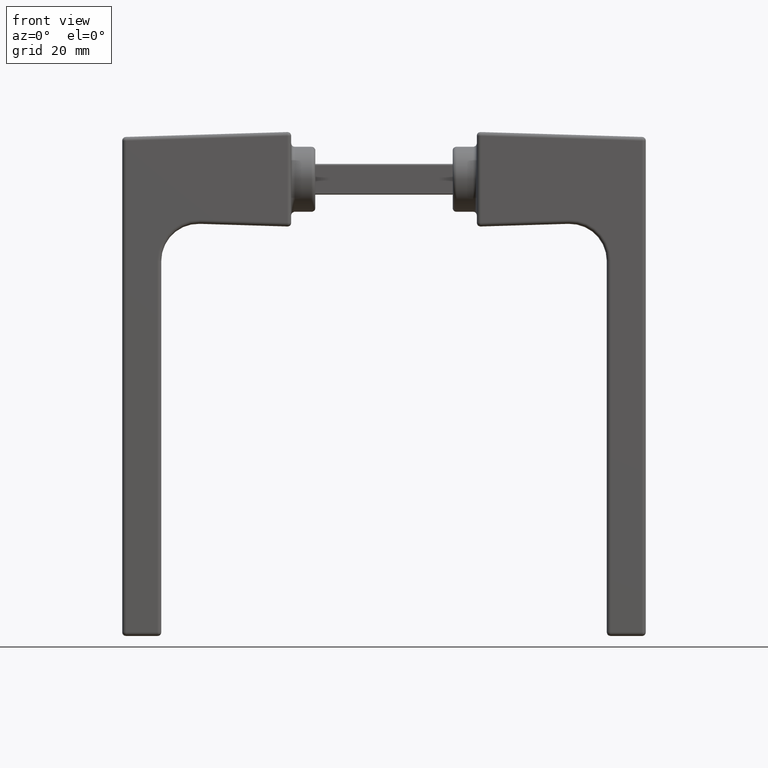
[diagram: clean part render]
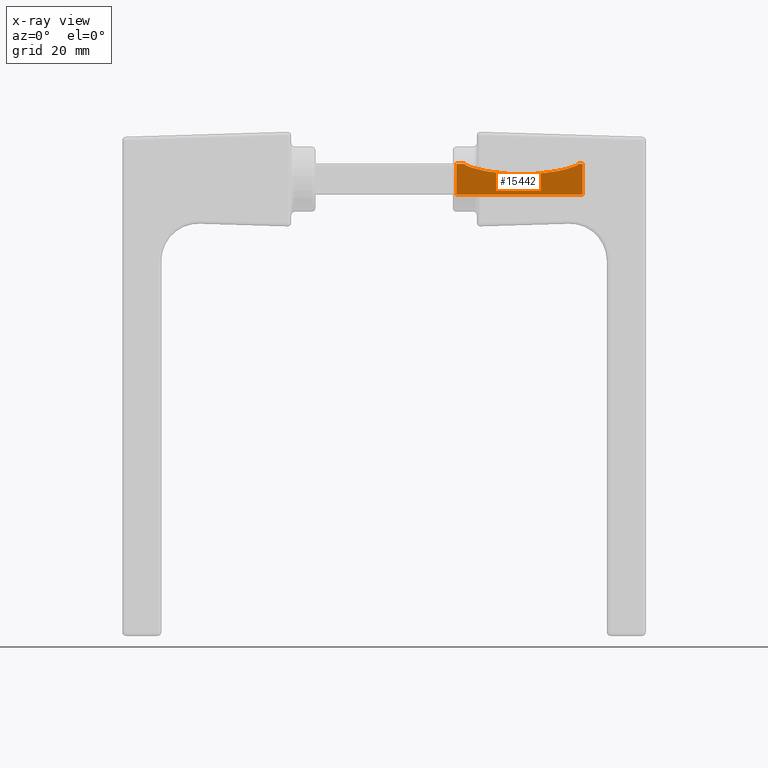
[diagram: x-ray — body ghosted, one internal face saturated and labeled with its STEP entity id]
A machine part, front view, then the same camera in x-ray: the body is ghosted and one INTERNAL B-rep face — a face not visible from any outside direction — is saturated and labeled: STEP entity #15442.
In plain terms, the highlighted planar face has unit normal (0, -1, 0).
Its self-contained STEP definition (entity closure, byte-faithful):
#10 = CARTESIAN_POINT ( 'NONE',  ( 44.50000000000000000, -0.6999999999999998446, 4.150000000000000355 ) ) ;
#33 = EDGE_CURVE ( 'NONE', #2819, #4692, #7102, .T. ) ;
#143 = CARTESIAN_POINT ( 'NONE',  ( 78.49290500879376964, -0.6999999999999998446, -4.150000000000001243 ) ) ;
#316 = CARTESIAN_POINT ( 'NONE',  ( 77.14384119967137110, -0.6999999999999999556, 3.821007525441935115 ) ) ;
#437 = CARTESIAN_POINT ( 'NONE',  ( 46.88426378734806121, -0.6999999999999998446, 3.873003874506072641 ) ) ;
#488 = B_SPLINE_CURVE_WITH_KNOTS ( 'NONE', 3,
 ( #8281, #6019, #9498, #10879 ),
 .UNSPECIFIED., .F., .F.,
 ( 4, 4 ),
 ( 0.008503523017541366608, 0.008512437111472700296 ),
 .UNSPECIFIED. ) ;
#518 = CARTESIAN_POINT ( 'NONE',  ( 44.50000000000000000, -0.6999999999999998446, 4.150000000000000355 ) ) ;
#524 = CARTESIAN_POINT ( 'NONE',  ( 52.83421173487058553, -0.6999999999999998446, 2.066007962702774314 ) ) ;
#702 = VERTEX_POINT ( 'NONE', #14068 ) ;
#825 = DIRECTION ( 'NONE',  ( 1.000000000000000000, -0.000000000000000000, -0.000000000000000000 ) ) ;
#986 = CARTESIAN_POINT ( 'NONE',  ( 44.50000000000000000, -0.6999999999999998446, -4.150000000000001243 ) ) ;
#1023 = DIRECTION ( 'NONE',  ( 1.000000000000000000, -0.000000000000000000, -0.000000000000000000 ) ) ;
#1433 = PLANE ( 'NONE',  #15336 ) ;
#1450 = ORIENTED_EDGE ( 'NONE', *, *, #33, .T. ) ;
#1502 = EDGE_CURVE ( 'NONE', #8235, #12652, #5244, .T. ) ;
#1549 = CARTESIAN_POINT ( 'NONE',  ( 76.78237184980623908, -0.6999999999999999556, 3.613768811947208892 ) ) ;
#1719 = EDGE_CURVE ( 'NONE', #7576, #2819, #6000, .T. ) ;
#1754 = CARTESIAN_POINT ( 'NONE',  ( 49.63614313809784306, -0.6999999999999999556, 2.812399021145189693 ) ) ;
#1774 = ORIENTED_EDGE ( 'NONE', *, *, #9441, .F. ) ;
#1809 = CARTESIAN_POINT ( 'NONE',  ( 78.49527002143935306, -0.6999999999999998446, -4.148201184730281099 ) ) ;
#1956 = CARTESIAN_POINT ( 'NONE',  ( 46.71827091725572245, -0.6999999999999998446, 4.150000000000162004 ) ) ;
#2430 = EDGE_CURVE ( 'NONE', #8235, #702, #8068, .T. ) ;
#2819 = VERTEX_POINT ( 'NONE', #8231 ) ;
#2921 = CARTESIAN_POINT ( 'NONE',  ( 56.73440902007840236, -0.6999999999999997335, 1.495137214044553131 ) ) ;
#2937 = CARTESIAN_POINT ( 'NONE',  ( 46.73114881461278713, -0.6999999999999999556, 4.067301068626258953 ) ) ;
#2970 = CARTESIAN_POINT ( 'NONE',  ( 75.07046603404047858, -0.6999999999999999556, 2.982119115154530320 ) ) ;
#3036 = CARTESIAN_POINT ( 'NONE',  ( 46.77099276059751531, -0.6999999999999997335, 3.994545985126529253 ) ) ;
#3500 = EDGE_CURVE ( 'NONE', #702, #7576, #488, .T. ) ;
#4014 = CARTESIAN_POINT ( 'NONE',  ( 78.49290500879376964, -0.6999999999999998446, -4.150000000000001243 ) ) ;
#4122 = CARTESIAN_POINT ( 'NONE',  ( 49.00310410953562013, -0.6999999999999997335, 2.990169413700241474 ) ) ;
#4180 = CARTESIAN_POINT ( 'NONE',  ( 72.50114326983955948, -0.7000000000000002887, 2.312943975713599887 ) ) ;
#4252 = CARTESIAN_POINT ( 'NONE',  ( 46.71827091725572245, -0.6999999999999998446, 4.150000000000162004 ) ) ;
#4692 = VERTEX_POINT ( 'NONE', #143 ) ;
#4867 = VECTOR ( 'NONE', #8293, 1000.000000000000000 ) ;
#4896 = EDGE_CURVE ( 'NONE', #9877, #12652, #10914, .T. ) ;
#4902 = CARTESIAN_POINT ( 'NONE',  ( 77.38172908274427186, -0.6999999999999998446, 4.150000000000000355 ) ) ;
#4953 = DIRECTION ( 'NONE',  ( 0.000000000000000000, -1.000000000000000000, -0.000000000000000000 ) ) ;
#5164 = VECTOR ( 'NONE', #11456, 1000.000000000000000 ) ;
#5176 = CARTESIAN_POINT ( 'NONE',  ( 76.01408711863331291, -0.6999999999999999556, 3.298522237191925832 ) ) ;
#5225 = CARTESIAN_POINT ( 'NONE',  ( 77.30077557932267496, -0.6999999999999999556, 3.959921606898943569 ) ) ;
#5242 = CARTESIAN_POINT ( 'NONE',  ( 46.95213895812164395, -0.6999999999999998446, 3.823877750149885735 ) ) ;
#5244 = B_SPLINE_CURVE_WITH_KNOTS ( 'NONE', 3,
 ( #10027, #7511, #14893, #12363, #5225, #7567, #316, #8759, #1549, #9976, #5176, #2970, #12614, #4180, #5391, #13828, #13771, #7759, #15000, #10126, #5333, #6547, #10183, #2921, #11346, #524, #8956, #1754, #4122, #12562, #11461, #5459, #6562, #5242, #437, #13901, #3036, #2937, #5354, #4252 ),
 .UNSPECIFIED., .F., .F.,
 ( 4, 2, 2, 2, 2, 2, 2, 2, 2, 2, 2, 2, 2, 2, 2, 2, 2, 2, 2, 4 ),
 ( 0.04715113346018982160, 0.04727418907977579132, 0.04739724469936176104, 0.04764335593853369355, 0.04813557841687756550, 0.04912002337356530940, 0.05108891328694079720, 0.05502669311369177974, 0.05896447294044275533, 0.06290225276719373093, 0.06487114268056921873, 0.06684003259394470653, 0.07077781242069570988, 0.07471559224744669936, 0.07668448216082218716, 0.07766892711750993106, 0.07816114959585379607, 0.07840726083502572163, 0.07853031645461168442, 0.07865337207419764720 ),
 .UNSPECIFIED. ) ;
#5333 = CARTESIAN_POINT ( 'NONE',  ( 60.66446390151436674, -0.6999999999999997335, 1.247456758493457718 ) ) ;
#5354 = CARTESIAN_POINT ( 'NONE',  ( 46.71827091725568692, -0.6999999999999998446, 4.108378035317773680 ) ) ;
#5391 = CARTESIAN_POINT ( 'NONE',  ( 71.20472326780233630, -0.6999999999999998446, 2.054311984619509701 ) ) ;
#5459 = CARTESIAN_POINT ( 'NONE',  ( 47.30909652781466690, -0.6999999999999997335, 3.617910183207506680 ) ) ;
#5571 = ORIENTED_EDGE ( 'NONE', *, *, #1719, .T. ) ;
#6000 = LINE ( 'NONE', #7451, #13178 ) ;
#6019 = CARTESIAN_POINT ( 'NONE',  ( 78.49527002144709797, -0.6999999999999998446, 4.148201184724392476 ) ) ;
#6124 = VERTEX_POINT ( 'NONE', #986 ) ;
#6326 = EDGE_CURVE ( 'NONE', #6124, #4692, #11266, .T. ) ;
#6480 = ORIENTED_EDGE ( 'NONE', *, *, #2430, .T. ) ;
#6542 = CARTESIAN_POINT ( 'NONE',  ( 78.50000000000000000, -0.6999999999999998446, -4.144603492545714474 ) ) ;
#6547 = CARTESIAN_POINT ( 'NONE',  ( 59.35238954537208400, -0.6999999999999996225, 1.300260113010345497 ) ) ;
#6562 = CARTESIAN_POINT ( 'NONE',  ( 47.16028380320199886, -0.6999999999999997335, 3.690296861220797808 ) ) ;
#7102 = B_SPLINE_CURVE_WITH_KNOTS ( 'NONE', 3,
 ( #6542, #14997, #1809, #4014 ),
 .UNSPECIFIED., .F., .F.,
 ( 4, 4 ),
 ( 0.02109387637583304276, 0.02110272353503789278 ),
 .UNSPECIFIED. ) ;
#7258 = LINE ( 'NONE', #11357, #5164 ) ;
#7402 = DIRECTION ( 'NONE',  ( 0.000000000000000000, 0.000000000000000000, -1.000000000000000000 ) ) ;
#7451 = CARTESIAN_POINT ( 'NONE',  ( 78.50000000000000000, -0.6999999999999998446, 4.150000000000000355 ) ) ;
#7511 = CARTESIAN_POINT ( 'NONE',  ( 77.38172908274457029, -0.6999999999999997335, 4.108069449181103394 ) ) ;
#7567 = CARTESIAN_POINT ( 'NONE',  ( 77.21233956489267314, -0.6999999999999999556, 3.870106758486608012 ) ) ;
#7576 = VERTEX_POINT ( 'NONE', #15328 ) ;
#7759 = CARTESIAN_POINT ( 'NONE',  ( 64.63807449567433139, -0.6999999999999997335, 1.281369017957546097 ) ) ;
#8068 = LINE ( 'NONE', #10, #4867 ) ;
#8231 = CARTESIAN_POINT ( 'NONE',  ( 78.50000000000000000, -0.6999999999999998446, -4.144603492545714474 ) ) ;
#8235 = VERTEX_POINT ( 'NONE', #4902 ) ;
#8281 = CARTESIAN_POINT ( 'NONE',  ( 78.49290500879375543, -0.6999999999999998446, 4.150000000000003020 ) ) ;
#8293 = DIRECTION ( 'NONE',  ( 1.000000000000000000, -0.000000000000000000, -0.000000000000000000 ) ) ;
#8759 = CARTESIAN_POINT ( 'NONE',  ( 76.93351641135454599, -0.6999999999999998446, 3.686929515114801159 ) ) ;
#8956 = CARTESIAN_POINT ( 'NONE',  ( 51.54733192493425520, -0.6999999999999998446, 2.324495264319454524 ) ) ;
#9441 = EDGE_CURVE ( 'NONE', #9877, #6124, #7258, .T. ) ;
#9498 = CARTESIAN_POINT ( 'NONE',  ( 78.49763501853593084, -0.6999999999999998446, 4.146402348932765491 ) ) ;
#9584 = VECTOR ( 'NONE', #825, 1000.000000000000000 ) ;
#9601 = CARTESIAN_POINT ( 'NONE',  ( 44.50000000000000000, -0.6999999999999998446, -4.150000000000001243 ) ) ;
#9856 = DIRECTION ( 'NONE',  ( 0.000000000000000000, 0.000000000000000000, -1.000000000000000000 ) ) ;
#9877 = VERTEX_POINT ( 'NONE', #518 ) ;
#9976 = CARTESIAN_POINT ( 'NONE',  ( 76.32622674179886246, -0.7000000000000000666, 3.410843837755937358 ) ) ;
#10027 = CARTESIAN_POINT ( 'NONE',  ( 77.38172908274427186, -0.6999999999999998446, 4.150000000000000355 ) ) ;
#10126 = CARTESIAN_POINT ( 'NONE',  ( 61.31969354077669010, -0.6999999999999997335, 1.233724940607935583 ) ) ;
#10183 = CARTESIAN_POINT ( 'NONE',  ( 58.69723120532518124, -0.6999999999999997335, 1.339380959620331213 ) ) ;
#10198 = ORIENTED_EDGE ( 'NONE', *, *, #6326, .F. ) ;
#10547 = ORIENTED_EDGE ( 'NONE', *, *, #1502, .F. ) ;
#10879 = CARTESIAN_POINT ( 'NONE',  ( 78.50000000000000000, -0.6999999999999998446, 4.144603492545700263 ) ) ;
#10914 = LINE ( 'NONE', #13965, #9584 ) ;
#11266 = LINE ( 'NONE', #9601, #13535 ) ;
#11346 = CARTESIAN_POINT ( 'NONE',  ( 55.42730443762795289, -0.6999999999999998446, 1.650264680991557320 ) ) ;
#11357 = CARTESIAN_POINT ( 'NONE',  ( 44.50000000000000000, -0.6999999999999998446, 4.150000000000000355 ) ) ;
#11456 = DIRECTION ( 'NONE',  ( 0.000000000000000000, 0.000000000000000000, -1.000000000000000000 ) ) ;
#11461 = CARTESIAN_POINT ( 'NONE',  ( 47.76096532647916604, -0.6999999999999997335, 3.415882957583341817 ) ) ;
#12363 = CARTESIAN_POINT ( 'NONE',  ( 77.32766376627832017, -0.6999999999999999556, 3.992524518431332492 ) ) ;
#12562 = CARTESIAN_POINT ( 'NONE',  ( 48.06981988422457874, -0.6999999999999998446, 3.304343626074100371 ) ) ;
#12614 = CARTESIAN_POINT ( 'NONE',  ( 74.42921210639759977, -0.6999999999999997335, 2.802790558723280423 ) ) ;
#12652 = VERTEX_POINT ( 'NONE', #1956 ) ;
#13178 = VECTOR ( 'NONE', #7402, 1000.000000000000000 ) ;
#13479 = ORIENTED_EDGE ( 'NONE', *, *, #3500, .T. ) ;
#13535 = VECTOR ( 'NONE', #1023, 1000.000000000000000 ) ;
#13771 = CARTESIAN_POINT ( 'NONE',  ( 67.28172508569264210, -0.6999999999999998446, 1.486002401989054089 ) ) ;
#13828 = CARTESIAN_POINT ( 'NONE',  ( 68.59517595671084678, -0.6999999999999999556, 1.639845781463355134 ) ) ;
#13901 = CARTESIAN_POINT ( 'NONE',  ( 46.79760446189103362, -0.6999999999999999556, 3.961859159317147938 ) ) ;
#13965 = CARTESIAN_POINT ( 'NONE',  ( 44.50000000000000000, -0.6999999999999998446, 4.150000000000000355 ) ) ;
#14068 = CARTESIAN_POINT ( 'NONE',  ( 78.49290500879375543, -0.6999999999999998446, 4.150000000000003020 ) ) ;
#14709 = CARTESIAN_POINT ( 'NONE',  ( 44.50000000000000000, -0.6999999999999998446, 4.150000000000000355 ) ) ;
#14738 = FACE_OUTER_BOUND ( 'NONE', #15668, .T. ) ;
#14893 = CARTESIAN_POINT ( 'NONE',  ( 77.36865588764939616, -0.6999999999999997335, 4.066528736584431591 ) ) ;
#14997 = CARTESIAN_POINT ( 'NONE',  ( 78.49763501852817171, -0.6999999999999998446, -4.146402348938671878 ) ) ;
#15000 = CARTESIAN_POINT ( 'NONE',  ( 63.31041723854047376, -0.6999999999999997335, 1.231110300859607598 ) ) ;
#15308 = ORIENTED_EDGE ( 'NONE', *, *, #4896, .T. ) ;
#15328 = CARTESIAN_POINT ( 'NONE',  ( 78.50000000000000000, -0.6999999999999998446, 4.144603492545700263 ) ) ;
#15336 = AXIS2_PLACEMENT_3D ( 'NONE', #14709, #4953, #9856 ) ;
#15442 = ADVANCED_FACE ( 'NONE', ( #14738 ), #1433, .F. ) ;
#15668 = EDGE_LOOP ( 'NONE', ( #10547, #6480, #13479, #5571, #1450, #10198, #1774, #15308 ) ) ;